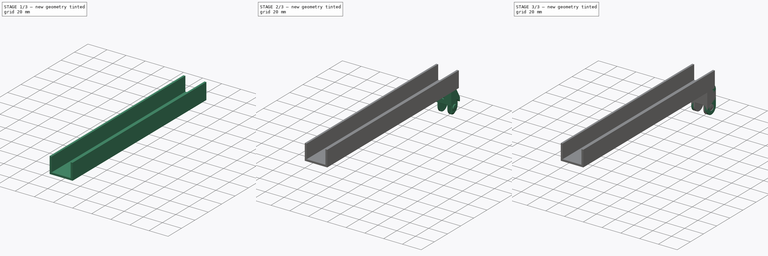
[diagram: build sequence overview — one tinted view per stage of 3, left to right]
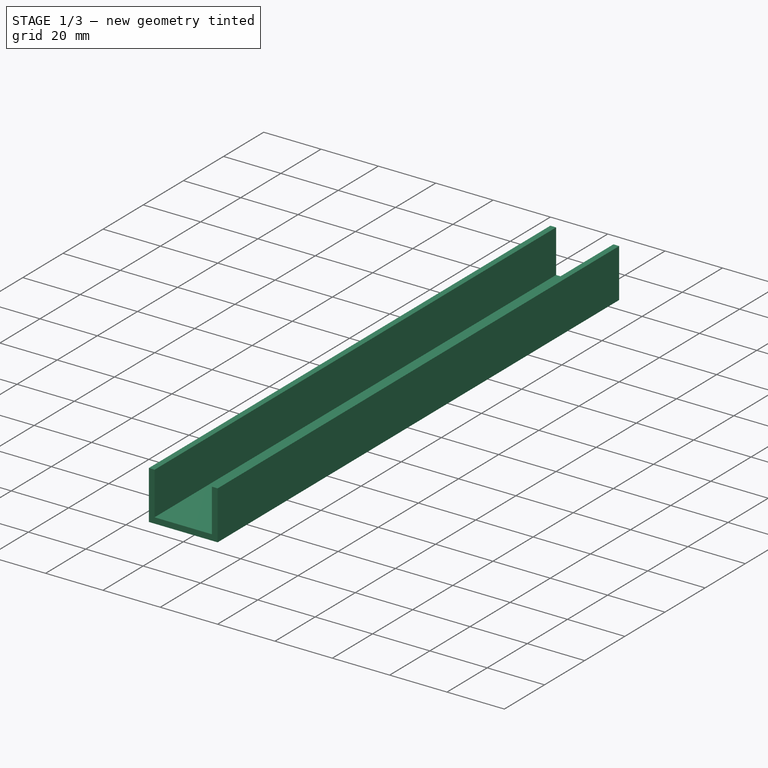
[diagram: stage 1 of 3 — iso view after this stage's code; geometry added in this stage tinted green]
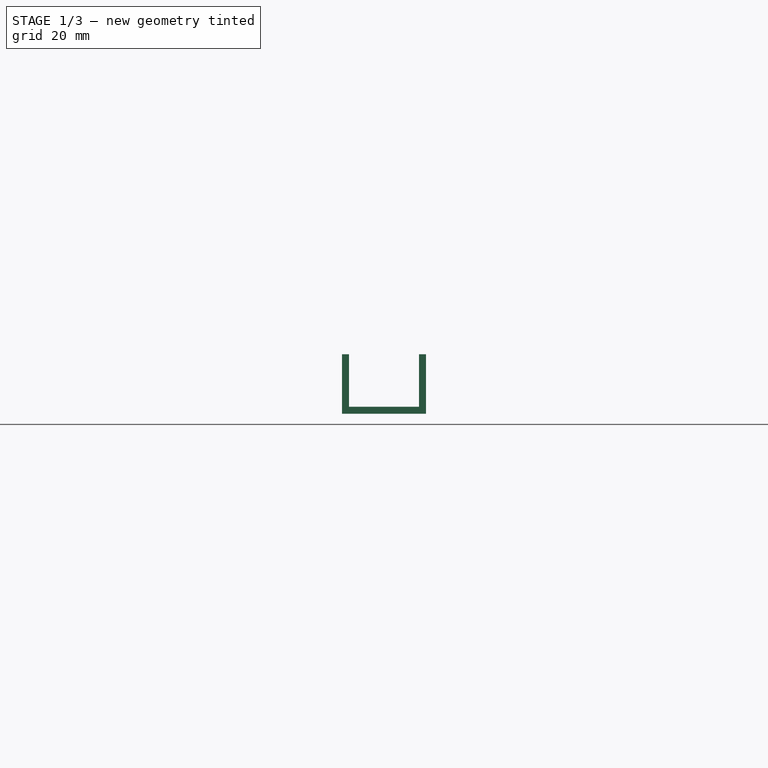
[diagram: stage 1 of 3 — front view after this stage's code; geometry added in this stage tinted green]
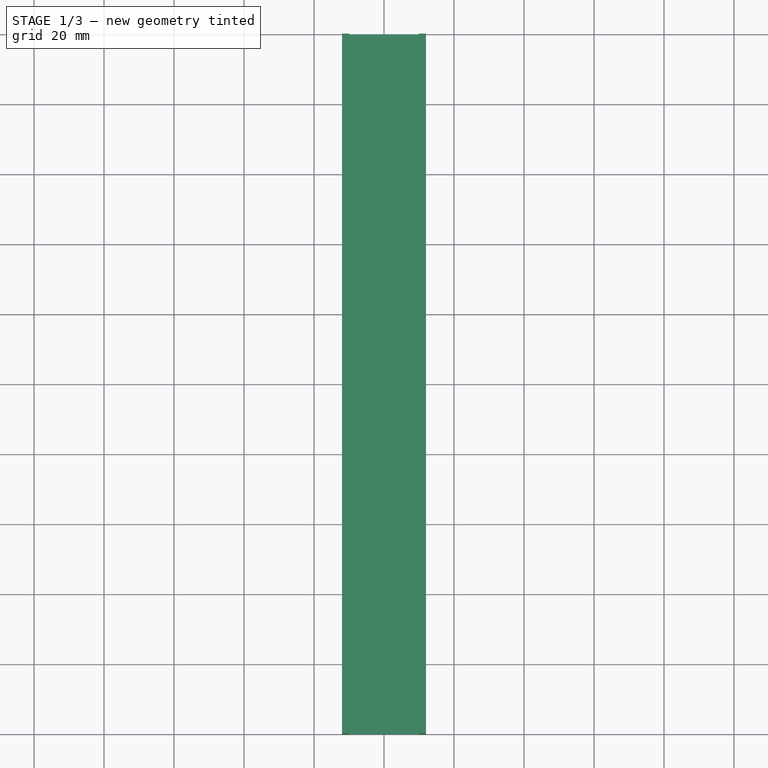
[diagram: stage 1 of 3 — top view after this stage's code; geometry added in this stage tinted green]
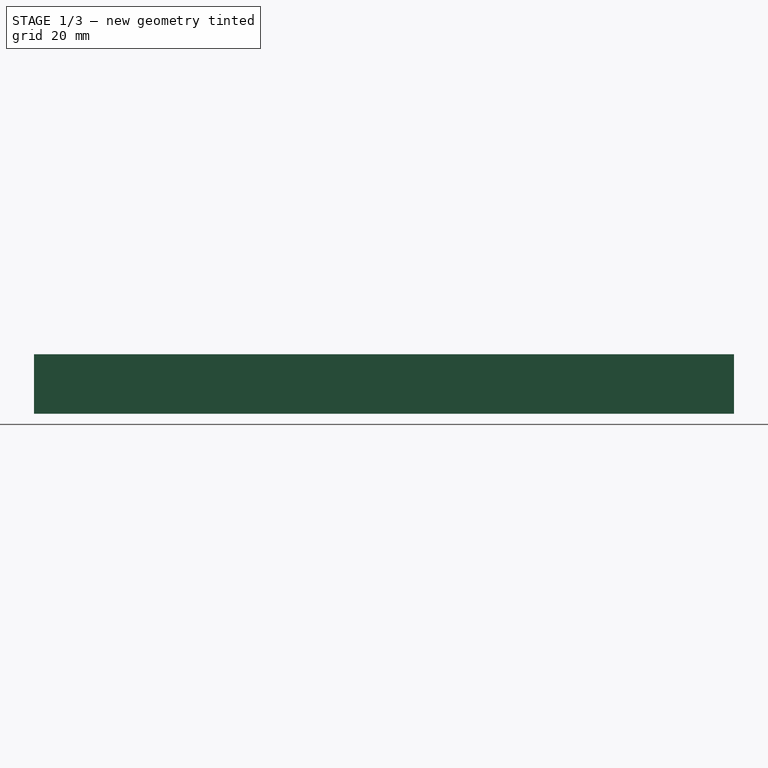
[diagram: stage 1 of 3 — right view after this stage's code; geometry added in this stage tinted green]
FCSTD DOCUMENT  (FreeCAD 0.20R29410 (Git))
Label: cabel_canal
License: All rights reserved
LicenseURL: http://en.wikipedia.org/wiki/All_rights_reserved
objects: PartDesign::CoordinateSystem×9, PartDesign::Body×4, Part::Feature×3, PartDesign::FeatureBase×3, Sketcher::SketchObject×1, PartDesign::Pad×1, PartDesign::Mirrored×1
note: 23 computed .brp shape members not serialized (recipe doc carries the construction recipe); baked Part::Feature solids carry a one-line shape summary decoded from their .brp

FEATURE [PartDesign::CoordinateSystem] M001
  AttacherType = Attacher::AttachEngine3D
  AttachmentOffset = pos=(0,0,0) rot=(-0.57735,-0.57735,-0.57735;2.0944rad)
  MapMode = 45
  Placement = pos=(5.53e-14,-1.3e-15,-6.75) rot=(0,0,1;0rad)
  Support = -> [BaseFeature002]
FEATURE [PartDesign::CoordinateSystem] P001
  AttacherType = Attacher::AttachEngine3D
  AttachmentOffset = pos=(0,0,0) rot=(0,0,-1;1.5708rad)
  MapMode = 45
  Placement = pos=(-1.2e-15,-5.1e-15,-21.75) rot=(0,0,1;0rad)
  Support = -> [BaseFeature002]
FEATURE [PartDesign::Body] Chain
  BaseFeature = -> Part__Feature
  Group = -> [BaseFeature002,LCS_0002,M001,P001]
  Origin = -> Origin002
  Tip = -> BaseFeature002
FEATURE [PartDesign::CoordinateSystem] M002
  AttacherType = Attacher::AttachEngine3D
  AttachmentOffset = pos=(0,0,0) rot=(-0.57735,-0.57735,-0.57735;2.0944rad)
  MapMode = 45
  Placement = pos=(1.29e-14,3e-16,-21.75) rot=(0,0,1;0rad)
  Support = -> [BaseFeature]
FEATURE [PartDesign::CoordinateSystem] m_fix
  AttacherType = Attacher::AttachEngine3D
  AttachmentOffset = pos=(0,0,0) rot=(1,0,0;3.14159rad)
  MapMode = 45
  Placement = pos=(7.7e-15,-6.75,-8) rot=(1,0,0;1.5708rad)
  Support = -> [BaseFeature]
FEATURE [PartDesign::Body] M
  BaseFeature = -> Part__Feature001
  Group = -> [BaseFeature,LCS_0,M002,m_fix]
  Origin = -> Origin
  Placement = pos=(20,0,0) rot=(0,0,1;0rad)
  Tip = -> BaseFeature
FEATURE [PartDesign::CoordinateSystem] Local_CS  label="P002"
  AttacherType = Attacher::AttachEngine3D
  AttachmentOffset = pos=(0,0,0) rot=(0,0,-1;1.5708rad)
  MapMode = 45
  Placement = pos=(0,-5.1e-15,-21.75) rot=(0,0,1;0rad)
  Support = -> [BaseFeature001]
FEATURE [PartDesign::CoordinateSystem] Local_CS001  label="p_fix"
  AttacherType = Attacher::AttachEngine3D
  AttachmentOffset = pos=(0,0,0) rot=(1,0,0;3.14159rad)
  MapMode = 45
  Placement = pos=(7e-15,-6.75,-8) rot=(1,0,0;1.5708rad)
  Support = -> [BaseFeature001]
FEATURE [PartDesign::Body] P
  BaseFeature = -> Part__Feature002
  Group = -> [BaseFeature001,LCS_0001,Local_CS,Local_CS001]
  Origin = -> Origin001
  Placement = pos=(40,0,0) rot=(0,0,1;0rad)
  Tip = -> BaseFeature001
FEATURE [Sketcher::SketchObject] Sketch
  FullyConstrained = true
  MapMode = 5
  Placement = pos=(0,0,0) rot=(1,0,0;1.5708rad)
  Support = -> [XZ_Plane003]
  sketch-geometry (6):
    g0: LineSegment StartX=12 StartY=-2 StartZ=0 EndX=12 EndY=15 EndZ=0
    g1: LineSegment StartX=12 StartY=15 StartZ=0 EndX=10 EndY=15 EndZ=0
    g2: LineSegment StartX=10 StartY=15 StartZ=0 EndX=10 EndY=0 EndZ=0
    g3: LineSegment StartX=12 StartY=-2 StartZ=0 EndX=0 EndY=-2 EndZ=0
    g4: LineSegment StartX=0 StartY=-2 StartZ=0 EndX=0 EndY=0 EndZ=0
    g5: LineSegment StartX=0 StartY=0 StartZ=0 EndX=10 EndY=0 EndZ=0
  constraints (17):
    c: Coincident(g0,g1)
    c: Coincident(g1,g2)
    c: Horizontal(g1)
    c: Vertical(g0)
    c: Vertical(g2)
    c: PointOnObject(g2,g-1)
    c: Coincident(g0,g3)
    c: PointOnObject(g3,g-2)
    c: Horizontal(g3)
    c: Coincident(g3,g4)
    c: Coincident(g4,g-1)
    c: Coincident(g4,g5)
    c: Coincident(g5,g2)
    c: Distance(g4) = 2
    c: Distance(g1) = 2
    c: DistanceX(g2) = 10
    c: Distance(g2) = 15
FEATURE [PartDesign::Pad] Pad
  Direction = (0,-1,2e-16)
  Length = 200
  Length2 = 10
  Placement = pos=(0,0,0) rot=(1,0,0;1.5708rad)
  Profile = -> Sketch
  ReferenceAxis = -> Sketch [N_Axis]
  Type = 0
FEATURE [PartDesign::Mirrored] Mirrored
  BaseFeature = -> Pad
  MirrorPlane = -> Sketch [V_Axis]
  Originals = -> [Pad]
  Placement = pos=(0,0,0) rot=(1,0,0;1.5708rad)
FEATURE [PartDesign::Body] Body  label="bed"
  Group = -> [Sketch,Pad,Mirrored]
  Origin = -> Origin003
  Placement = pos=(0,0,0) rot=(1,0,0;4.71239rad)
  Tip = -> Mirrored
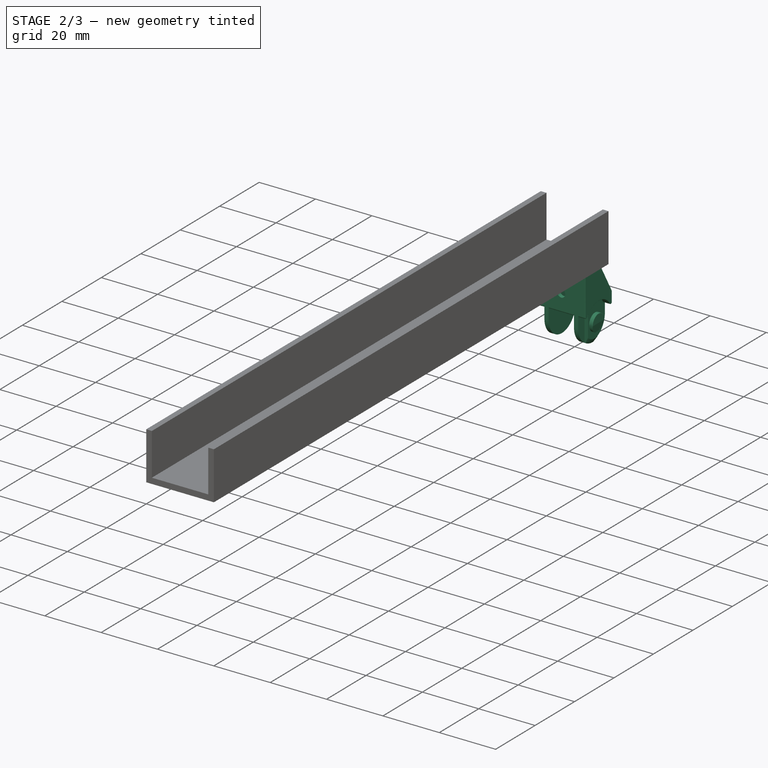
[diagram: stage 2 of 3 — iso view after this stage's code; geometry added in this stage tinted green]
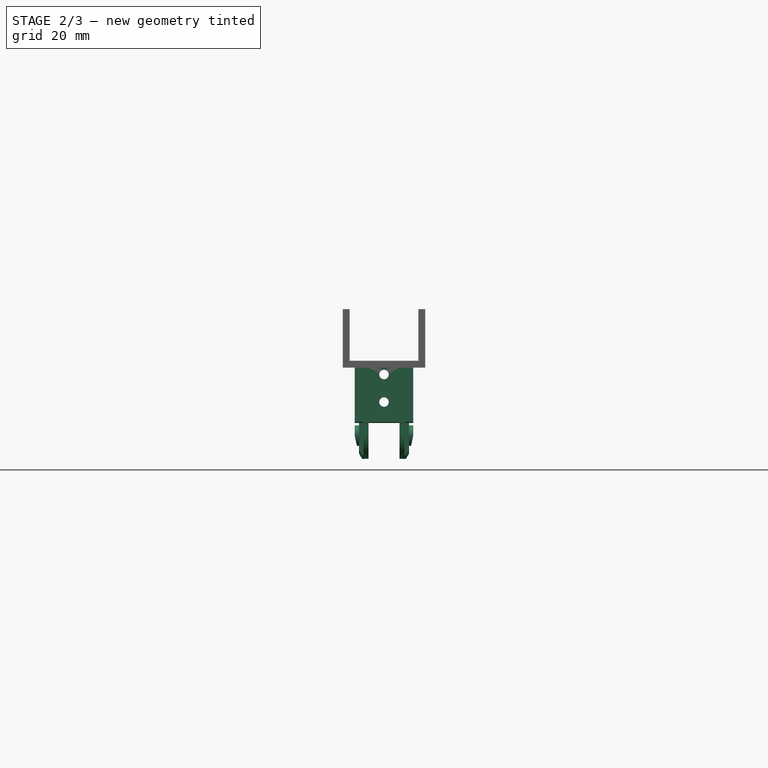
[diagram: stage 2 of 3 — front view after this stage's code; geometry added in this stage tinted green]
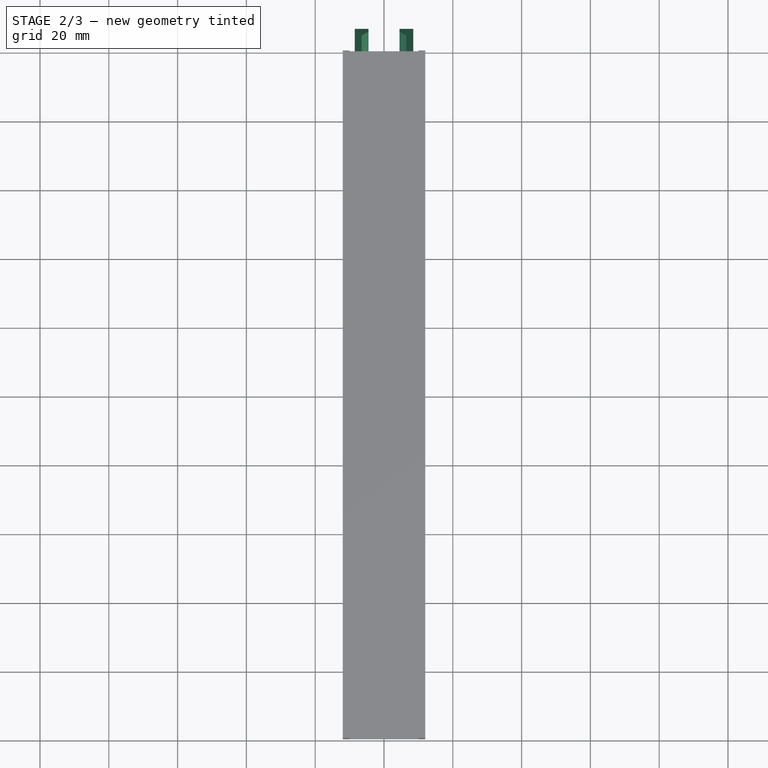
[diagram: stage 2 of 3 — top view after this stage's code; geometry added in this stage tinted green]
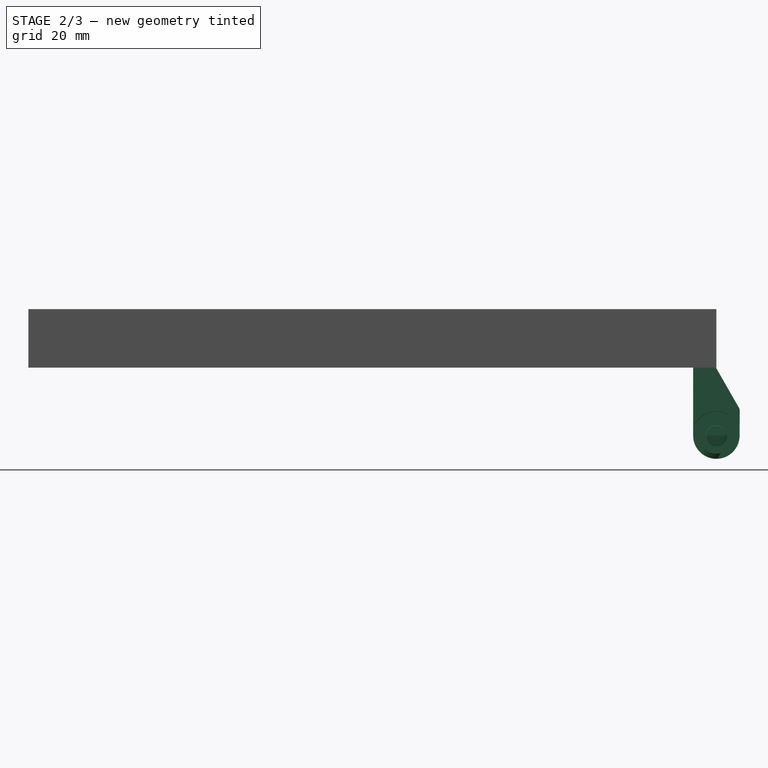
[diagram: stage 2 of 3 — right view after this stage's code; geometry added in this stage tinted green]
FEATURE [PartDesign::FeatureBase] BaseFeature001
  BaseFeature = -> Part__Feature002
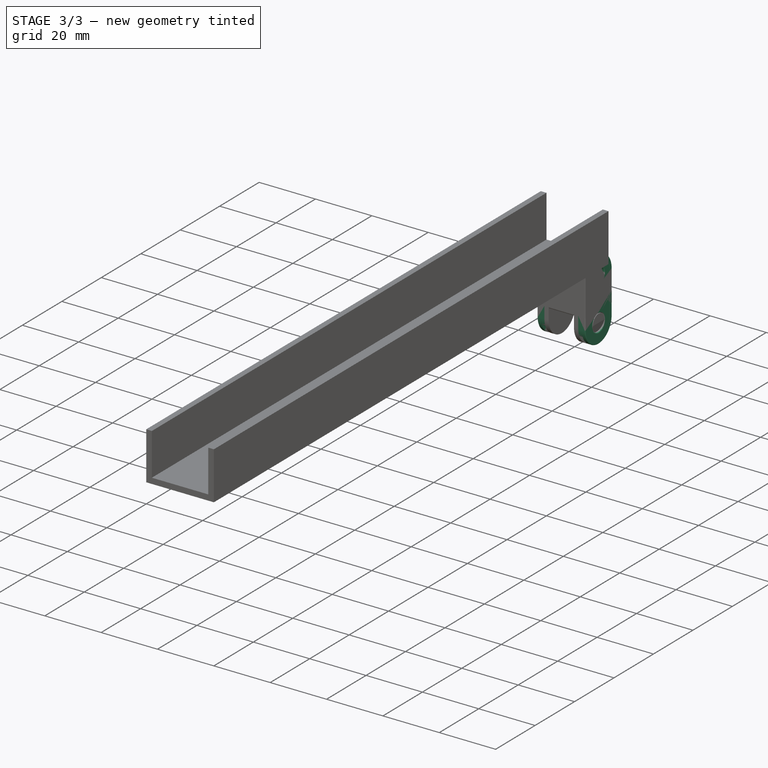
[diagram: stage 3 of 3 — iso view after this stage's code; geometry added in this stage tinted green]
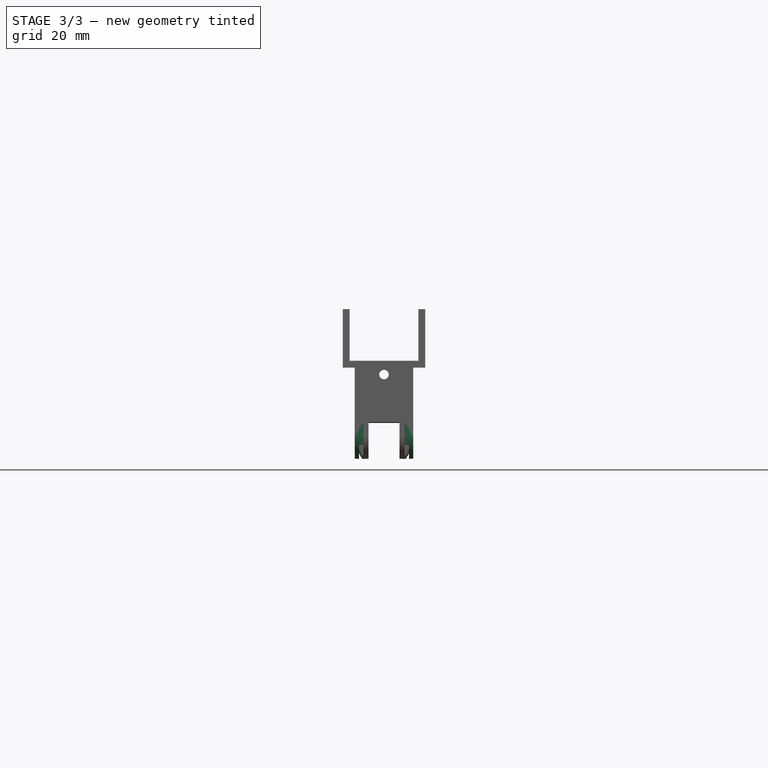
[diagram: stage 3 of 3 — front view after this stage's code; geometry added in this stage tinted green]
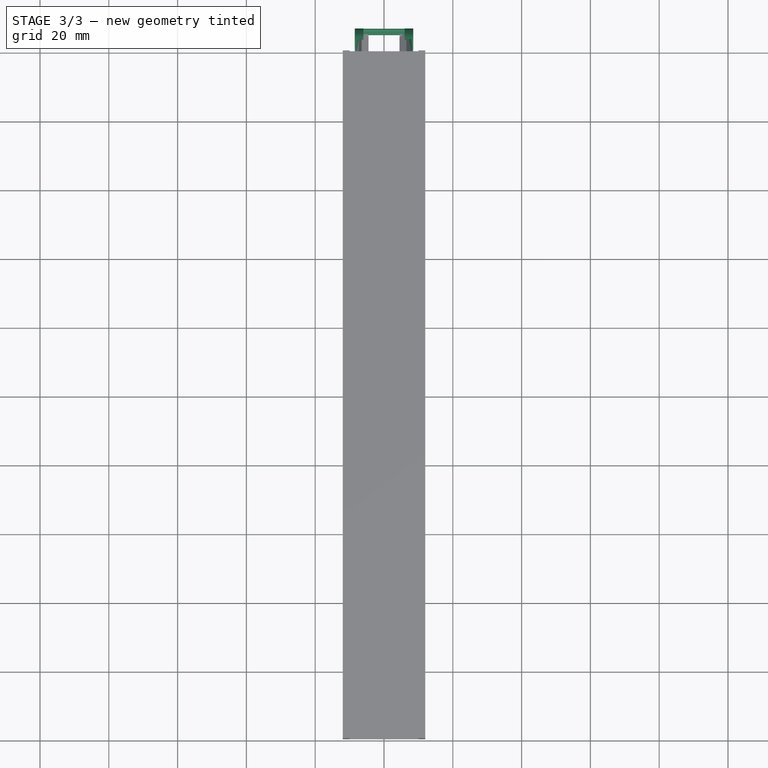
[diagram: stage 3 of 3 — top view after this stage's code; geometry added in this stage tinted green]
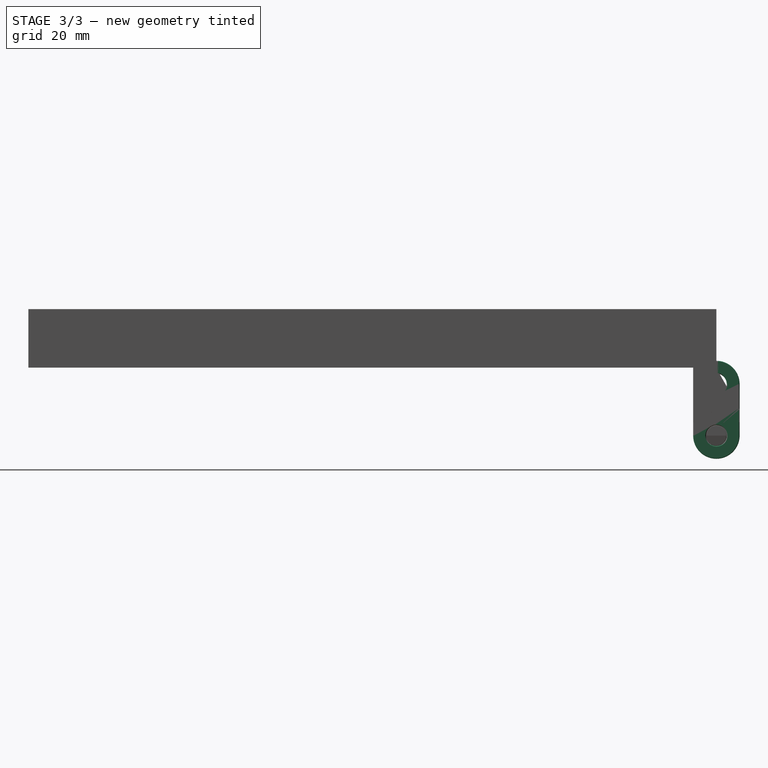
[diagram: stage 3 of 3 — right view after this stage's code; geometry added in this stage tinted green]
FEATURE [Part::Feature] Part__Feature  label="Звено"
  shape: bbox 17.01 x 14.62 x 29.06 mm, 89 faces (baked)
FEATURE [Part::Feature] Part__Feature001  label="Мама"
  shape: bbox 17 x 14.61 x 29.14 mm, 62 faces (baked)
FEATURE [Part::Feature] Part__Feature002  label="Папа"
  shape: bbox 17.01 x 13.63 x 28.59 mm, 78 faces (baked)
FEATURE [PartDesign::CoordinateSystem] LCS_0
  AttacherType = Attacher::AttachEngine3D
  MapMode = 2
  Support = -> [X_Axis]
FEATURE [PartDesign::CoordinateSystem] LCS_0001
  AttacherType = Attacher::AttachEngine3D
  MapMode = 2
  Support = -> [X_Axis001]
FEATURE [PartDesign::CoordinateSystem] LCS_0002
  AttacherType = Attacher::AttachEngine3D
  MapMode = 2
  Support = -> [X_Axis002]
FEATURE [PartDesign::FeatureBase] BaseFeature
  BaseFeature = -> Part__Feature001
FEATURE [PartDesign::FeatureBase] BaseFeature002
  BaseFeature = -> Part__Feature
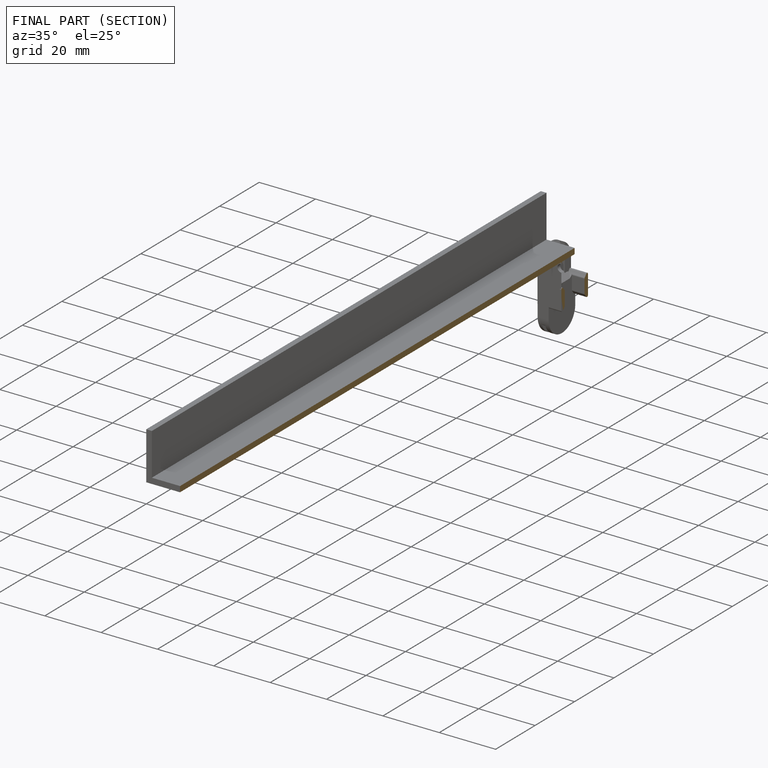
[diagram: finished part — half-section view (interior)]
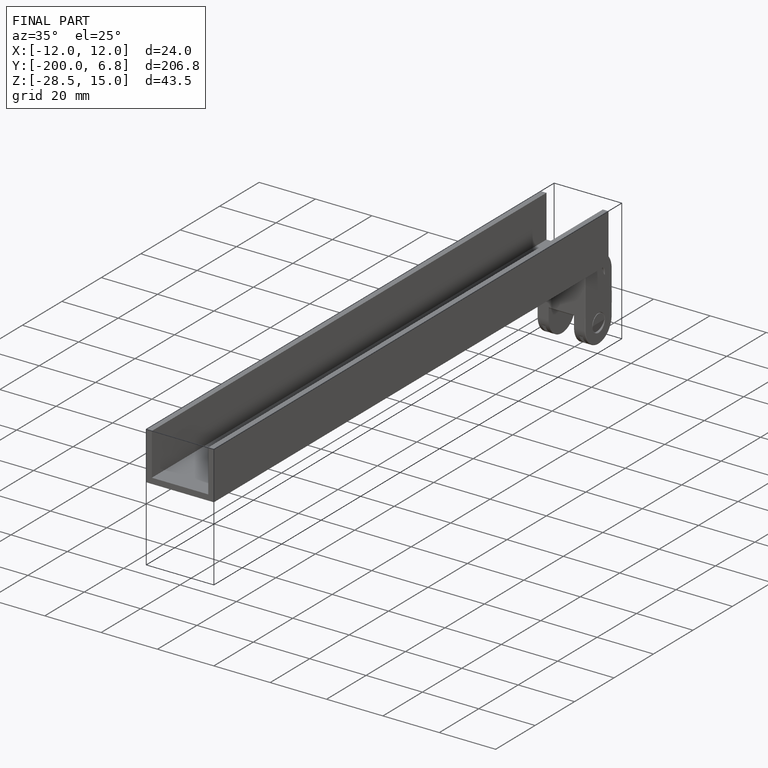
[diagram: finished part — iso view with bounding-box wireframe]
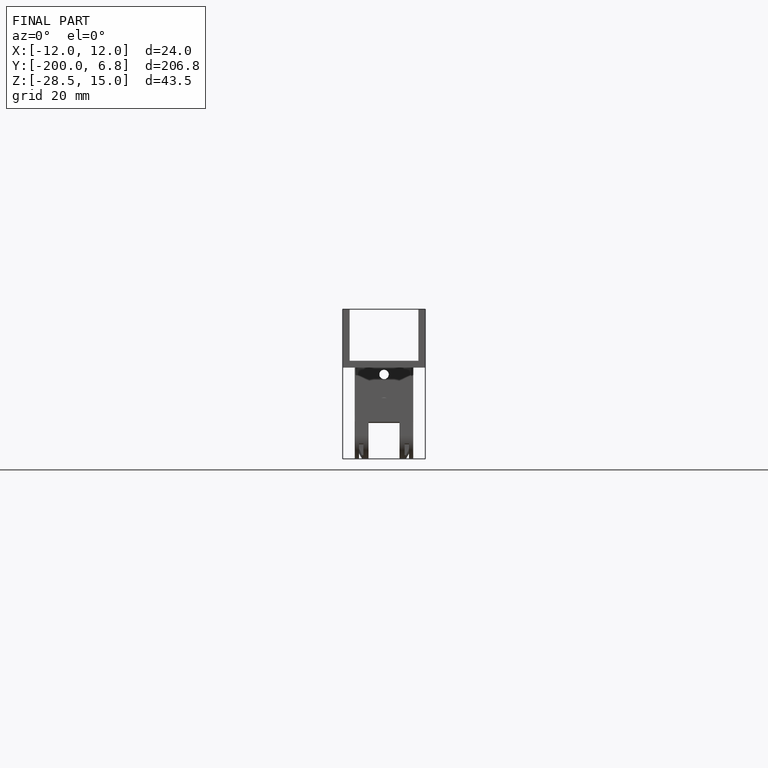
[diagram: finished part — front view with bounding-box wireframe]
